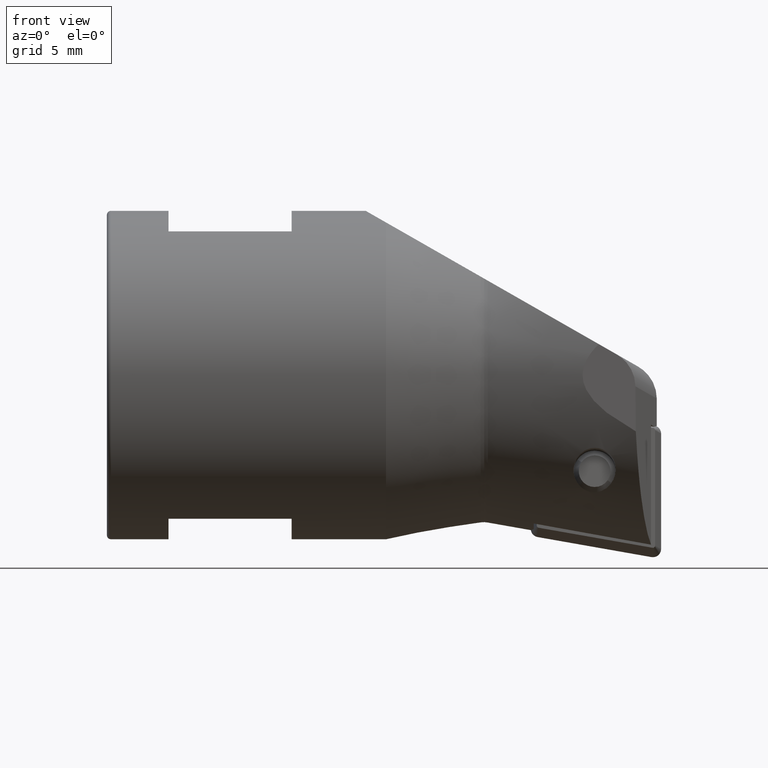
[diagram: clean part render]
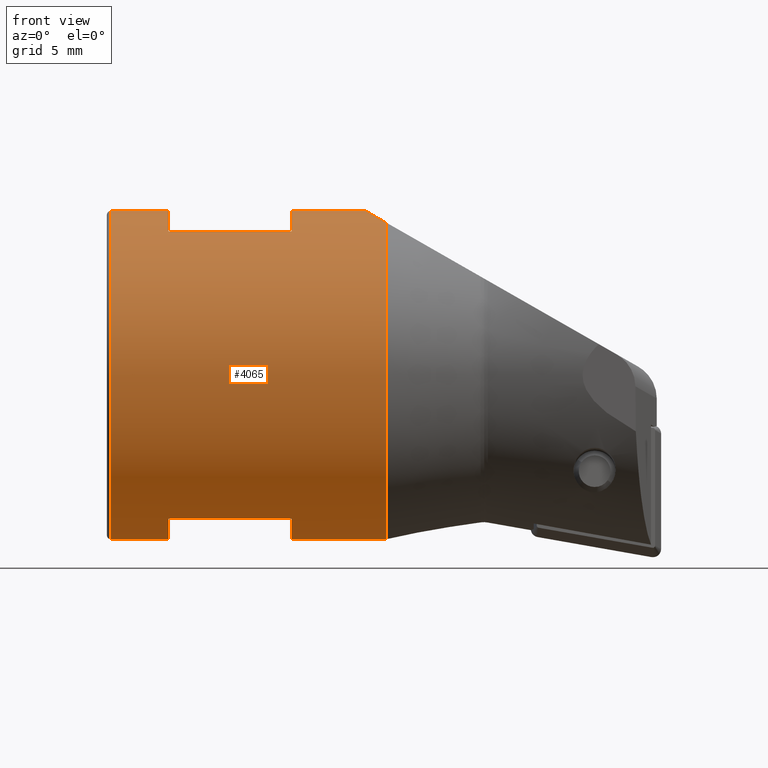
[diagram: same view with one face highlighted and labeled with its STEP entity id]
A machine part, front view. The second image highlights one B-rep face of the part: STEP entity #4065.
In plain terms, the highlighted cylindrical surface (partial cylindrical patch) has radius 8 mm, axis along (-1, -0, -0).
Its self-contained STEP definition (entity closure, byte-faithful):
#22 = ORIENTED_EDGE ( 'NONE', *, *, #3945, .T. ) ;
#39 = EDGE_CURVE ( 'NONE', #4289, #2302, #1020, .T. ) ;
#44 = CARTESIAN_POINT ( 'NONE',  ( -26.80000000000000100, 9.797174393178825700E-016, 0.8749999999999990000 ) ) ;
#89 = DIRECTION ( 'NONE',  ( -1.000000000000000000, -0.0000000000000000000, -0.0000000000000000000 ) ) ;
#123 = EDGE_LOOP ( 'NONE', ( #2208, #501, #1419, #3644, #3764, #4423, #4158, #2649, #22, #4383, #2387, #1484, #4386 ) ) ;
#189 = EDGE_CURVE ( 'NONE', #757, #3363, #2666, .T. ) ;
#255 = DIRECTION ( 'NONE',  ( -1.000000000000000000, -0.0000000000000000000, -0.0000000000000000000 ) ) ;
#265 = DIRECTION ( 'NONE',  ( 0.0000000000000000000, 0.0000000000000000000, -1.000000000000000000 ) ) ;
#283 = VECTOR ( 'NONE', #3525, 1000.000000000000000 ) ;
#299 = AXIS2_PLACEMENT_3D ( 'NONE', #667, #1365, #4119 ) ;
#354 = CARTESIAN_POINT ( 'NONE',  ( -13.40000000000000000, 0.0000000000000000000, 8.875000000000000000 ) ) ;
#367 = CARTESIAN_POINT ( 'NONE',  ( -24.00000000000000000, 9.797174393178825700E-016, 0.8749999999999990000 ) ) ;
#432 = DIRECTION ( 'NONE',  ( 0.0000000000000000000, 0.0000000000000000000, -1.000000000000000000 ) ) ;
#437 = EDGE_CURVE ( 'NONE', #1889, #1626, #2398, .T. ) ;
#491 = CIRCLE ( 'NONE', #2131, 8.000000000000001800 ) ;
#501 = ORIENTED_EDGE ( 'NONE', *, *, #2413, .T. ) ;
#509 = CARTESIAN_POINT ( 'NONE',  ( -14.39544820129880000, 0.0000000000000000000, 16.87500000000000000 ) ) ;
#576 = VECTOR ( 'NONE', #89, 1000.000000000000000 ) ;
#590 = DIRECTION ( 'NONE',  ( -1.000000000000000000, 0.0000000000000000000, 0.0000000000000000000 ) ) ;
#625 = CARTESIAN_POINT ( 'NONE',  ( -24.00000000000000000, 0.0000000000000000000, 8.875000000000000000 ) ) ;
#659 = VECTOR ( 'NONE', #1628, 1000.000000000000000 ) ;
#662 = CARTESIAN_POINT ( 'NONE',  ( -18.00000000000000400, -3.872983346207415200, 15.87500000000000000 ) ) ;
#667 = CARTESIAN_POINT ( 'NONE',  ( -26.80000000000000100, 0.0000000000000000000, 8.875000000000000000 ) ) ;
#685 = CIRCLE ( 'NONE', #299, 8.000000000000000000 ) ;
#757 = VERTEX_POINT ( 'NONE', #1583 ) ;
#841 = EDGE_CURVE ( 'NONE', #757, #1428, #3574, .T. ) ;
#863 = CARTESIAN_POINT ( 'NONE',  ( -28.59735948021380400, 0.0000000000000000000, 16.87500000000000000 ) ) ;
#917 = CARTESIAN_POINT ( 'NONE',  ( -13.40000000000000000, -2.966440439592648500, 16.30468580212847100 ) ) ;
#950 = CARTESIAN_POINT ( 'NONE',  ( -24.00000000000000000, 0.0000000000000000000, 8.875000000000000000 ) ) ;
#957 = LINE ( 'NONE', #2851, #1067 ) ;
#1020 = CIRCLE ( 'NONE', #2086, 8.000000000000001800 ) ;
#1067 = VECTOR ( 'NONE', #1305, 1000.000000000000000 ) ;
#1146 = LINE ( 'NONE', #863, #659 ) ;
#1194 = AXIS2_PLACEMENT_3D ( 'NONE', #2855, #3936, #2210 ) ;
#1305 = DIRECTION ( 'NONE',  ( 1.000000000000000000, 0.0000000000000000000, 0.0000000000000000000 ) ) ;
#1365 = DIRECTION ( 'NONE',  ( 1.000000000000000000, 0.0000000000000000000, 0.0000000000000000000 ) ) ;
#1411 = CARTESIAN_POINT ( 'NONE',  ( -24.00000000000000000, -3.872983346207415200, 15.87500000000000000 ) ) ;
#1419 = ORIENTED_EDGE ( 'NONE', *, *, #3887, .F. ) ;
#1428 = VERTEX_POINT ( 'NONE', #3156 ) ;
#1484 = ORIENTED_EDGE ( 'NONE', *, *, #4520, .T. ) ;
#1583 = CARTESIAN_POINT ( 'NONE',  ( -24.00000000000000000, 0.0000000000000000000, 16.87500000000000000 ) ) ;
#1626 = VERTEX_POINT ( 'NONE', #4072 ) ;
#1628 = DIRECTION ( 'NONE',  ( -1.000000000000000000, -0.0000000000000000000, -0.0000000000000000000 ) ) ;
#1644 = FACE_OUTER_BOUND ( 'NONE', #123, .T. ) ;
#1685 = VERTEX_POINT ( 'NONE', #917 ) ;
#1698 =( BOUNDED_CURVE ( )  B_SPLINE_CURVE ( 3, ( #509, #2170, #2879, #1978 ),
 .UNSPECIFIED., .F., .T. ) 
 B_SPLINE_CURVE_WITH_KNOTS ( ( 4, 4 ),
 ( 6.282752948196525200, 6.662628671255863100 ),
 .UNSPECIFIED. ) 
 CURVE ( )  GEOMETRIC_REPRESENTATION_ITEM ( )  RATIONAL_B_SPLINE_CURVE ( ( 1.000000000000000000, 0.9880106457495019300, 0.9880106457495019300, 1.000000000000000000 ) ) 
 REPRESENTATION_ITEM ( '' )  );
#1764 = AXIS2_PLACEMENT_3D ( 'NONE', #625, #2780, #265 ) ;
#1889 = VERTEX_POINT ( 'NONE', #3112 ) ;
#1904 = LINE ( 'NONE', #3951, #4169 ) ;
#1946 = DIRECTION ( 'NONE',  ( 1.000000000000000000, 0.0000000000000000000, 0.0000000000000000000 ) ) ;
#1978 = CARTESIAN_POINT ( 'NONE',  ( -13.40000000000000000, -2.966440439592648500, 16.30468580212847100 ) ) ;
#2014 = EDGE_CURVE ( 'NONE', #3786, #4408, #491, .T. ) ;
#2086 = AXIS2_PLACEMENT_3D ( 'NONE', #3119, #590, #2738 ) ;
#2131 = AXIS2_PLACEMENT_3D ( 'NONE', #950, #4059, #4535 ) ;
#2170 = CARTESIAN_POINT ( 'NONE',  ( -14.39621903550071200, -1.019140837172820800, 16.87500000000000700 ) ) ;
#2184 = CARTESIAN_POINT ( 'NONE',  ( -24.00000000000000000, -3.872983346207416100, 1.874999999999999100 ) ) ;
#2195 = CARTESIAN_POINT ( 'NONE',  ( -28.59735948021380400, 9.797174393178825700E-016, 0.8749999999999990000 ) ) ;
#2208 = ORIENTED_EDGE ( 'NONE', *, *, #4629, .F. ) ;
#2210 = DIRECTION ( 'NONE',  ( 0.0000000000000000000, 0.0000000000000000000, 1.000000000000000000 ) ) ;
#2241 = CARTESIAN_POINT ( 'NONE',  ( -28.59735948021380400, 0.0000000000000000000, 16.87500000000000000 ) ) ;
#2302 = VERTEX_POINT ( 'NONE', #4492 ) ;
#2379 = AXIS2_PLACEMENT_3D ( 'NONE', #354, #255, #3928 ) ;
#2387 = ORIENTED_EDGE ( 'NONE', *, *, #2014, .T. ) ;
#2394 = AXIS2_PLACEMENT_3D ( 'NONE', #4349, #2955, #432 ) ;
#2398 = CIRCLE ( 'NONE', #2394, 8.000000000000000000 ) ;
#2413 = EDGE_CURVE ( 'NONE', #3370, #1685, #3863, .T. ) ;
#2472 = VECTOR ( 'NONE', #3134, 1000.000000000000000 ) ;
#2649 = ORIENTED_EDGE ( 'NONE', *, *, #841, .T. ) ;
#2666 = CIRCLE ( 'NONE', #1764, 8.000000000000000000 ) ;
#2698 = EDGE_CURVE ( 'NONE', #3621, #2302, #1146, .T. ) ;
#2738 = DIRECTION ( 'NONE',  ( 0.0000000000000000000, 0.0000000000000000000, 1.000000000000000000 ) ) ;
#2780 = DIRECTION ( 'NONE',  ( 1.000000000000000000, 0.0000000000000000000, 0.0000000000000000000 ) ) ;
#2851 = CARTESIAN_POINT ( 'NONE',  ( -28.59735948021380400, -3.872983346207415200, 15.87500000000000000 ) ) ;
#2855 = CARTESIAN_POINT ( 'NONE',  ( -28.59735948021380400, 0.0000000000000000000, 8.875000000000000000 ) ) ;
#2861 = CARTESIAN_POINT ( 'NONE',  ( -28.59735948021380400, 9.797174393178825700E-016, 0.8749999999999990000 ) ) ;
#2879 = CARTESIAN_POINT ( 'NONE',  ( -14.06037643246085600, -2.019953413553621700, 16.68258837625718600 ) ) ;
#2955 = DIRECTION ( 'NONE',  ( 1.000000000000000000, 0.0000000000000000000, 0.0000000000000000000 ) ) ;
#3112 = CARTESIAN_POINT ( 'NONE',  ( -18.00000000000000400, -3.872983346207416100, 1.874999999999999100 ) ) ;
#3119 = CARTESIAN_POINT ( 'NONE',  ( -18.00000000000000400, 0.0000000000000000000, 8.875000000000000000 ) ) ;
#3134 = DIRECTION ( 'NONE',  ( -1.000000000000000000, -0.0000000000000000000, -0.0000000000000000000 ) ) ;
#3156 = CARTESIAN_POINT ( 'NONE',  ( -26.80000000000000100, 0.0000000000000000000, 16.87500000000000000 ) ) ;
#3363 = VERTEX_POINT ( 'NONE', #1411 ) ;
#3370 = VERTEX_POINT ( 'NONE', #3929 ) ;
#3525 = DIRECTION ( 'NONE',  ( -1.000000000000000000, -0.0000000000000000000, -0.0000000000000000000 ) ) ;
#3569 = LINE ( 'NONE', #2861, #283 ) ;
#3574 = LINE ( 'NONE', #2241, #576 ) ;
#3621 = VERTEX_POINT ( 'NONE', #4311 ) ;
#3644 = ORIENTED_EDGE ( 'NONE', *, *, #2698, .T. ) ;
#3759 = EDGE_CURVE ( 'NONE', #3786, #4185, #3569, .T. ) ;
#3764 = ORIENTED_EDGE ( 'NONE', *, *, #39, .F. ) ;
#3786 = VERTEX_POINT ( 'NONE', #367 ) ;
#3830 = LINE ( 'NONE', #2195, #2472 ) ;
#3863 = CIRCLE ( 'NONE', #2379, 8.000000000000001800 ) ;
#3887 = EDGE_CURVE ( 'NONE', #3621, #1685, #1698, .T. ) ;
#3928 = DIRECTION ( 'NONE',  ( 0.0000000000000000000, 0.0000000000000000000, 1.000000000000000000 ) ) ;
#3929 = CARTESIAN_POINT ( 'NONE',  ( -13.40000000000000000, 9.797174393178825700E-016, 0.8749999999999990000 ) ) ;
#3936 = DIRECTION ( 'NONE',  ( -1.000000000000000000, -0.0000000000000000000, -0.0000000000000000000 ) ) ;
#3945 = EDGE_CURVE ( 'NONE', #1428, #4185, #685, .T. ) ;
#3951 = CARTESIAN_POINT ( 'NONE',  ( -28.59735948021380400, -3.872983346207416100, 1.874999999999999100 ) ) ;
#4059 = DIRECTION ( 'NONE',  ( -1.000000000000000000, 0.0000000000000000000, 0.0000000000000000000 ) ) ;
#4065 = ADVANCED_FACE ( 'NONE', ( #1644 ), #4283, .T. ) ;
#4072 = CARTESIAN_POINT ( 'NONE',  ( -18.00000000000000400, 9.797174393178825700E-016, 0.8749999999999990000 ) ) ;
#4119 = DIRECTION ( 'NONE',  ( 0.0000000000000000000, 0.0000000000000000000, -1.000000000000000000 ) ) ;
#4158 = ORIENTED_EDGE ( 'NONE', *, *, #189, .F. ) ;
#4169 = VECTOR ( 'NONE', #1946, 1000.000000000000000 ) ;
#4185 = VERTEX_POINT ( 'NONE', #44 ) ;
#4283 = CYLINDRICAL_SURFACE ( 'NONE', #1194, 8.000000000000001800 ) ;
#4289 = VERTEX_POINT ( 'NONE', #662 ) ;
#4311 = CARTESIAN_POINT ( 'NONE',  ( -14.39544820129880000, 0.0000000000000000000, 16.87500000000000000 ) ) ;
#4349 = CARTESIAN_POINT ( 'NONE',  ( -18.00000000000000400, 0.0000000000000000000, 8.875000000000000000 ) ) ;
#4383 = ORIENTED_EDGE ( 'NONE', *, *, #3759, .F. ) ;
#4386 = ORIENTED_EDGE ( 'NONE', *, *, #437, .T. ) ;
#4408 = VERTEX_POINT ( 'NONE', #2184 ) ;
#4423 = ORIENTED_EDGE ( 'NONE', *, *, #4561, .F. ) ;
#4492 = CARTESIAN_POINT ( 'NONE',  ( -18.00000000000000400, 0.0000000000000000000, 16.87500000000000000 ) ) ;
#4520 = EDGE_CURVE ( 'NONE', #4408, #1889, #1904, .T. ) ;
#4535 = DIRECTION ( 'NONE',  ( 0.0000000000000000000, 0.0000000000000000000, 1.000000000000000000 ) ) ;
#4561 = EDGE_CURVE ( 'NONE', #3363, #4289, #957, .T. ) ;
#4629 = EDGE_CURVE ( 'NONE', #3370, #1626, #3830, .T. ) ;